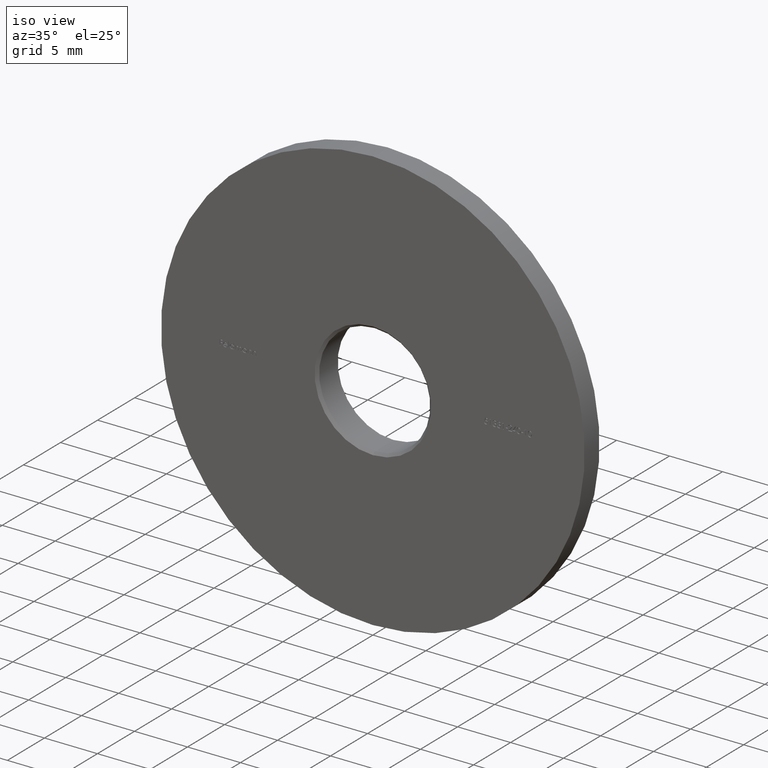
[diagram: clean part render]
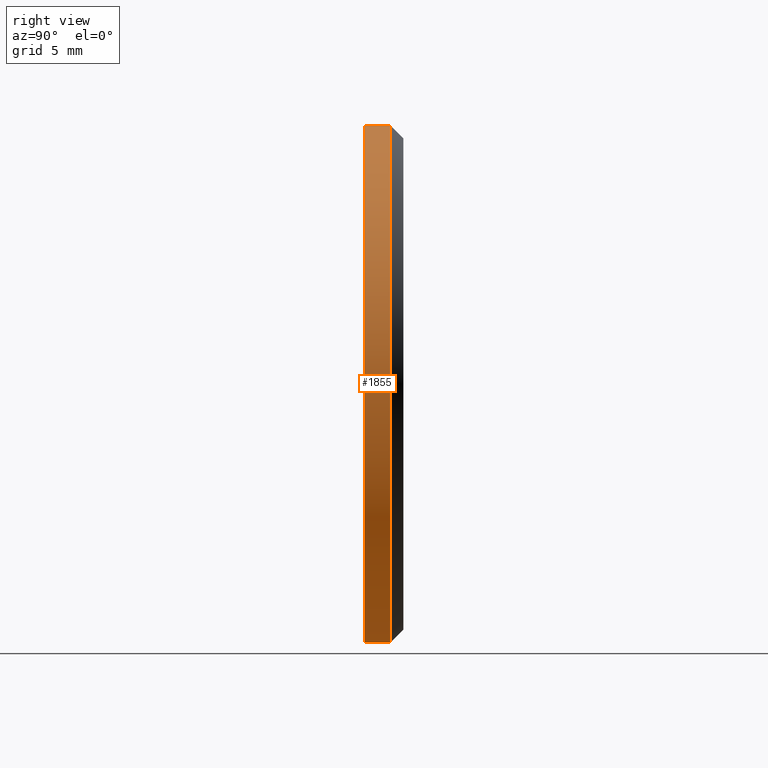
[diagram: tour spotlight — one face highlighted and labeled with its STEP entity id]
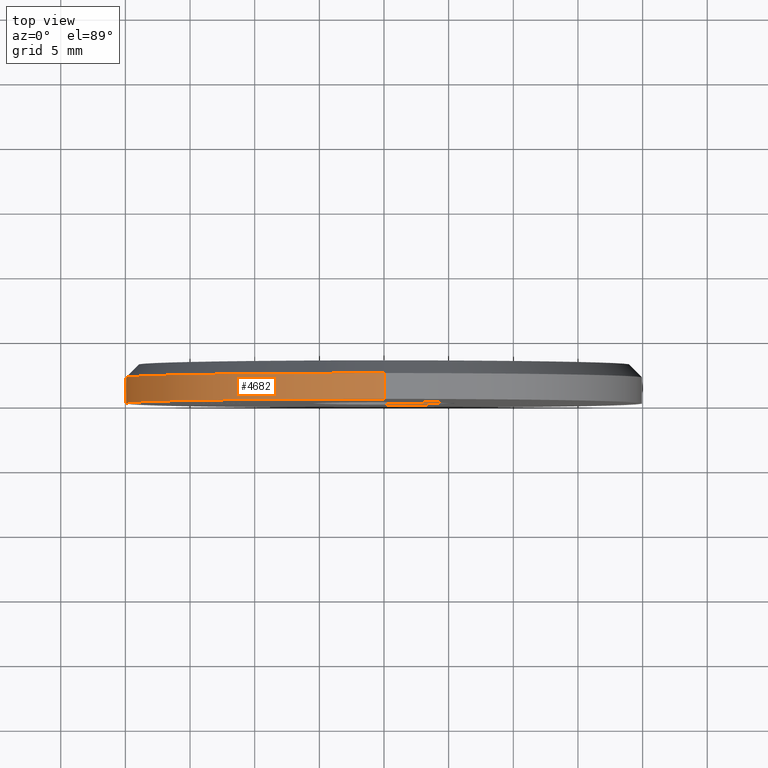
[diagram: tour spotlight — one face highlighted and labeled with its STEP entity id]
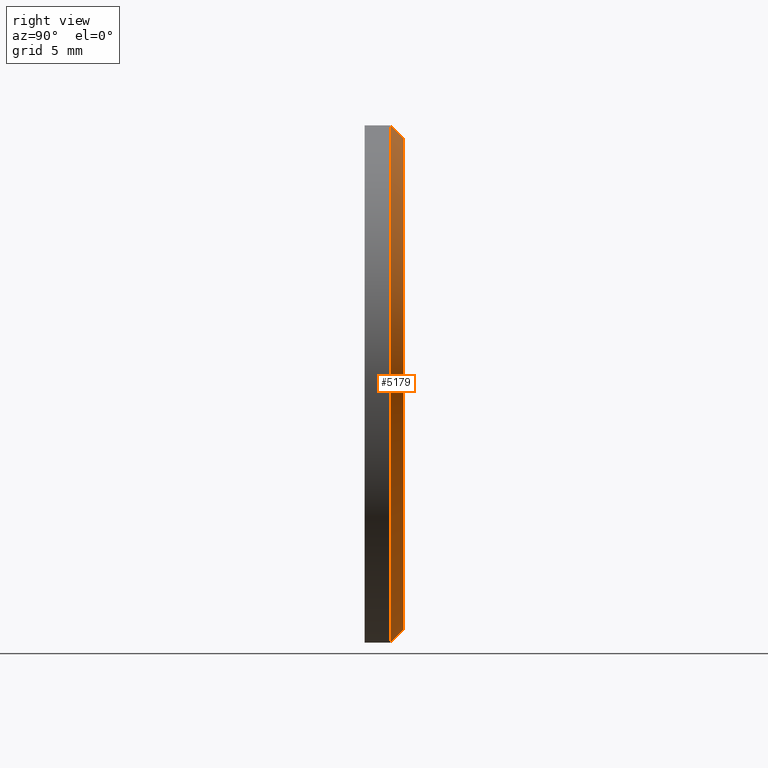
[diagram: tour spotlight — one face highlighted and labeled with its STEP entity id]
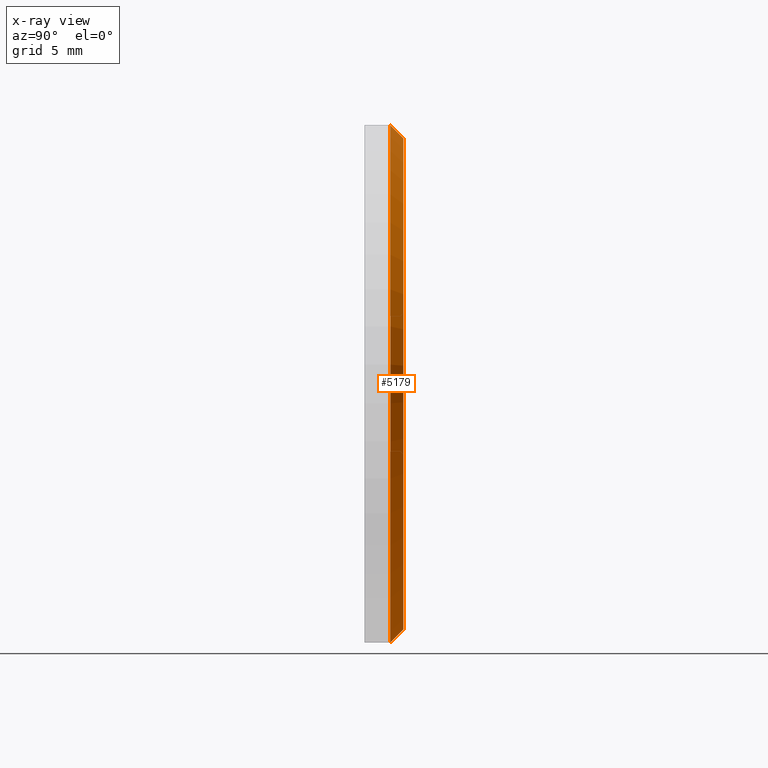
[diagram: x-ray of the same camera — body ghosted, this tour face saturated]
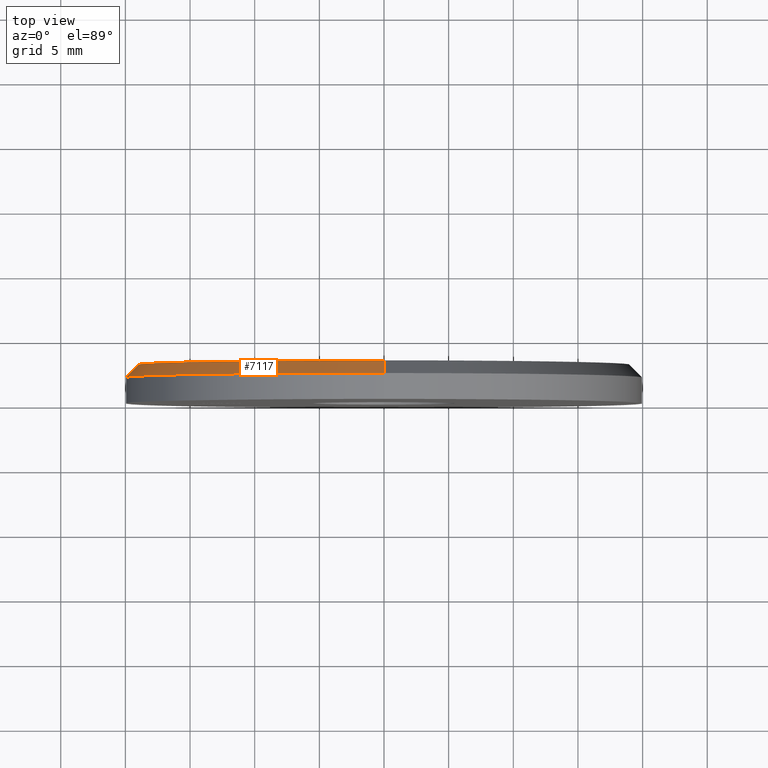
[diagram: tour spotlight — one face highlighted and labeled with its STEP entity id]
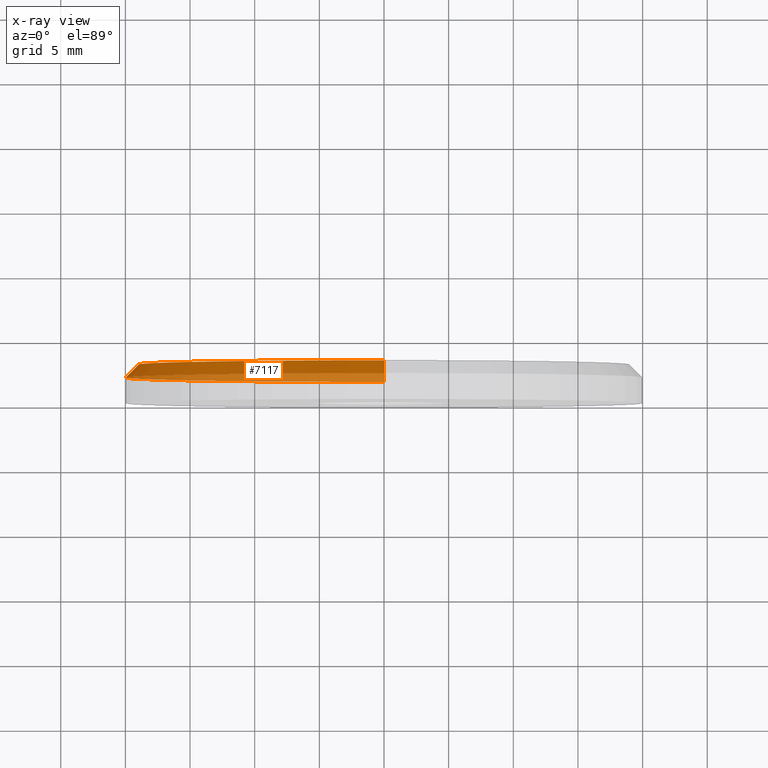
[diagram: x-ray of the same camera — body ghosted, this tour face saturated]
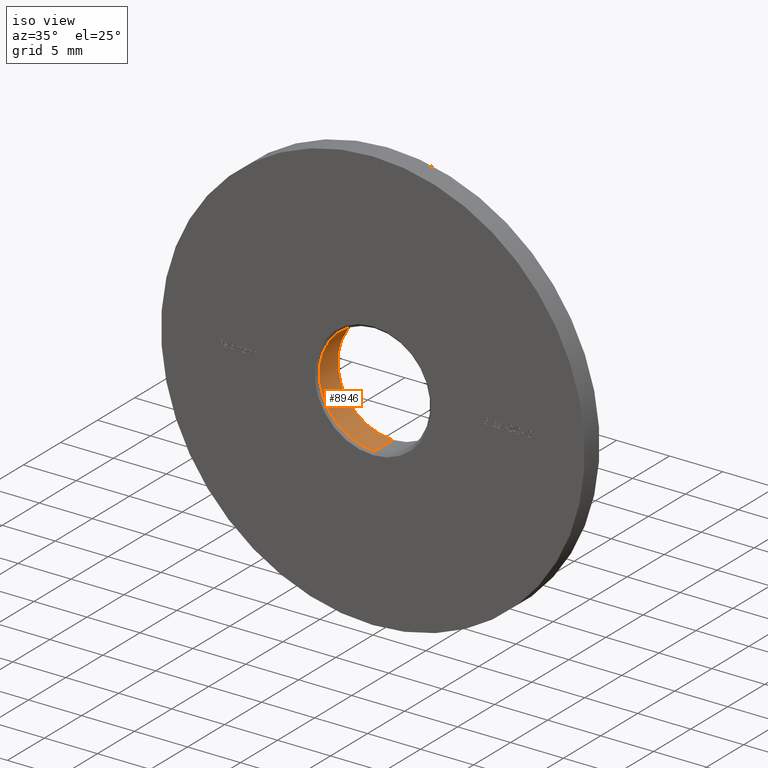
[diagram: tour spotlight — one face highlighted and labeled with its STEP entity id]
A machine part: a face-by-face anatomy tour. The part has 257 B-rep faces; the first image is the clean iso view, then the 5 largest visible faces are spotlighted one at a time (largest first), each with its STEP entity span.

Face 1 — right view, entity #1855. In plain terms, the highlighted cylindrical surface (partial cylindrical patch) has radius 20 mm, axis along (-0, -1, -0).
Definition (entity closure, byte-faithful):
#95 = ORIENTED_EDGE ( 'NONE', *, *, #11075, .T. ) ;
#1220 = DIRECTION ( 'NONE',  ( -0.000000000000000000, -1.000000000000000000, -0.000000000000000000 ) ) ;
#1492 = ORIENTED_EDGE ( 'NONE', *, *, #8247, .F. ) ;
#1716 = VECTOR ( 'NONE', #1220, 1000.000000000000000 ) ;
#1755 = CARTESIAN_POINT ( 'NONE',  ( 0.000000000000000000, 3.000000000000000000, 0.000000000000000000 ) ) ;
#1855 = ADVANCED_FACE ( 'NONE', ( #10318 ), #2284, .T. ) ;
#2264 = CARTESIAN_POINT ( 'NONE',  ( 2.449293598294706513E-15, 3.000000000000000000, 20.00000000000000000 ) ) ;
#2284 = CYLINDRICAL_SURFACE ( 'NONE', #9618, 20.00000000000000000 ) ;
#2450 = AXIS2_PLACEMENT_3D ( 'NONE', #12706, #5254, #5344 ) ;
#2993 = CIRCLE ( 'NONE', #4807, 20.00000000000000000 ) ;
#3727 = DIRECTION ( 'NONE',  ( -0.000000000000000000, -1.000000000000000000, -0.000000000000000000 ) ) ;
#4016 = ORIENTED_EDGE ( 'NONE', *, *, #5787, .T. ) ;
#4108 = VERTEX_POINT ( 'NONE', #11941 ) ;
#4807 = AXIS2_PLACEMENT_3D ( 'NONE', #7459, #11617, #5265 ) ;
#5217 = VERTEX_POINT ( 'NONE', #6935 ) ;
#5254 = DIRECTION ( 'NONE',  ( 0.000000000000000000, 1.000000000000000000, 0.000000000000000000 ) ) ;
#5265 = DIRECTION ( 'NONE',  ( 0.000000000000000000, 0.000000000000000000, 1.000000000000000000 ) ) ;
#5344 = DIRECTION ( 'NONE',  ( 0.000000000000000000, 0.000000000000000000, 1.000000000000000000 ) ) ;
#5375 = VECTOR ( 'NONE', #9614, 1000.000000000000000 ) ;
#5434 = EDGE_CURVE ( 'NONE', #5217, #4108, #6909, .T. ) ;
#5787 = EDGE_CURVE ( 'NONE', #4108, #9002, #13626, .T. ) ;
#5882 = VERTEX_POINT ( 'NONE', #9190 ) ;
#6909 = LINE ( 'NONE', #2264, #1716 ) ;
#6935 = CARTESIAN_POINT ( 'NONE',  ( 2.449293598294706513E-15, 1.999999999999988676, 20.00000000000000000 ) ) ;
#7459 = CARTESIAN_POINT ( 'NONE',  ( 0.000000000000000000, 1.999999999999988676, 0.000000000000000000 ) ) ;
#8247 = EDGE_CURVE ( 'NONE', #5882, #9002, #11050, .T. ) ;
#8515 = CARTESIAN_POINT ( 'NONE',  ( 0.000000000000000000, 0.000000000000000000, -20.00000000000000000 ) ) ;
#8535 = EDGE_LOOP ( 'NONE', ( #95, #8676, #4016, #1492 ) ) ;
#8676 = ORIENTED_EDGE ( 'NONE', *, *, #5434, .T. ) ;
#9002 = VERTEX_POINT ( 'NONE', #8515 ) ;
#9190 = CARTESIAN_POINT ( 'NONE',  ( 0.000000000000000000, 1.999999999999988676, -20.00000000000000000 ) ) ;
#9614 = DIRECTION ( 'NONE',  ( -0.000000000000000000, -1.000000000000000000, -0.000000000000000000 ) ) ;
#9618 = AXIS2_PLACEMENT_3D ( 'NONE', #1755, #3727, #13834 ) ;
#10318 = FACE_OUTER_BOUND ( 'NONE', #8535, .T. ) ;
#10730 = CARTESIAN_POINT ( 'NONE',  ( 0.000000000000000000, 3.000000000000000000, -20.00000000000000000 ) ) ;
#11050 = LINE ( 'NONE', #10730, #5375 ) ;
#11075 = EDGE_CURVE ( 'NONE', #5882, #5217, #2993, .T. ) ;
#11617 = DIRECTION ( 'NONE',  ( 0.000000000000000000, -1.000000000000000000, 0.000000000000000000 ) ) ;
#11941 = CARTESIAN_POINT ( 'NONE',  ( 2.449293598294706513E-15, 0.000000000000000000, 20.00000000000000000 ) ) ;
#12706 = CARTESIAN_POINT ( 'NONE',  ( 0.000000000000000000, 0.000000000000000000, 0.000000000000000000 ) ) ;
#13626 = CIRCLE ( 'NONE', #2450, 20.00000000000000000 ) ;
#13834 = DIRECTION ( 'NONE',  ( 0.000000000000000000, 0.000000000000000000, -1.000000000000000000 ) ) ;

Face 2 — top view, entity #4682. In plain terms, the highlighted cylindrical surface (partial cylindrical patch) has radius 20 mm, axis along (-0, -1, -0).
Definition (entity closure, byte-faithful):
#252 = CIRCLE ( 'NONE', #6694, 20.00000000000000000 ) ;
#859 = DIRECTION ( 'NONE',  ( 0.000000000000000000, 0.000000000000000000, 1.000000000000000000 ) ) ;
#913 = ORIENTED_EDGE ( 'NONE', *, *, #8247, .T. ) ;
#1220 = DIRECTION ( 'NONE',  ( -0.000000000000000000, -1.000000000000000000, -0.000000000000000000 ) ) ;
#1716 = VECTOR ( 'NONE', #1220, 1000.000000000000000 ) ;
#2238 = FACE_OUTER_BOUND ( 'NONE', #5952, .T. ) ;
#2264 = CARTESIAN_POINT ( 'NONE',  ( 2.449293598294706513E-15, 3.000000000000000000, 20.00000000000000000 ) ) ;
#2394 = DIRECTION ( 'NONE',  ( 0.000000000000000000, 0.000000000000000000, -1.000000000000000000 ) ) ;
#2734 = CYLINDRICAL_SURFACE ( 'NONE', #2985, 20.00000000000000000 ) ;
#2985 = AXIS2_PLACEMENT_3D ( 'NONE', #6733, #4585, #2394 ) ;
#4017 = ORIENTED_EDGE ( 'NONE', *, *, #11568, .T. ) ;
#4108 = VERTEX_POINT ( 'NONE', #11941 ) ;
#4585 = DIRECTION ( 'NONE',  ( -0.000000000000000000, -1.000000000000000000, -0.000000000000000000 ) ) ;
#4682 = ADVANCED_FACE ( 'NONE', ( #2238 ), #2734, .T. ) ;
#5217 = VERTEX_POINT ( 'NONE', #6935 ) ;
#5375 = VECTOR ( 'NONE', #9614, 1000.000000000000000 ) ;
#5434 = EDGE_CURVE ( 'NONE', #5217, #4108, #6909, .T. ) ;
#5882 = VERTEX_POINT ( 'NONE', #9190 ) ;
#5952 = EDGE_LOOP ( 'NONE', ( #13633, #8682, #913, #4017 ) ) ;
#6346 = DIRECTION ( 'NONE',  ( 0.000000000000000000, -1.000000000000000000, 0.000000000000000000 ) ) ;
#6547 = CIRCLE ( 'NONE', #8763, 20.00000000000000000 ) ;
#6694 = AXIS2_PLACEMENT_3D ( 'NONE', #9339, #13654, #13560 ) ;
#6733 = CARTESIAN_POINT ( 'NONE',  ( 0.000000000000000000, 3.000000000000000000, 0.000000000000000000 ) ) ;
#6909 = LINE ( 'NONE', #2264, #1716 ) ;
#6935 = CARTESIAN_POINT ( 'NONE',  ( 2.449293598294706513E-15, 1.999999999999988676, 20.00000000000000000 ) ) ;
#7857 = EDGE_CURVE ( 'NONE', #5217, #5882, #6547, .T. ) ;
#8247 = EDGE_CURVE ( 'NONE', #5882, #9002, #11050, .T. ) ;
#8515 = CARTESIAN_POINT ( 'NONE',  ( 0.000000000000000000, 0.000000000000000000, -20.00000000000000000 ) ) ;
#8521 = CARTESIAN_POINT ( 'NONE',  ( 0.000000000000000000, 1.999999999999988676, 0.000000000000000000 ) ) ;
#8682 = ORIENTED_EDGE ( 'NONE', *, *, #7857, .T. ) ;
#8763 = AXIS2_PLACEMENT_3D ( 'NONE', #8521, #6346, #859 ) ;
#9002 = VERTEX_POINT ( 'NONE', #8515 ) ;
#9190 = CARTESIAN_POINT ( 'NONE',  ( 0.000000000000000000, 1.999999999999988676, -20.00000000000000000 ) ) ;
#9339 = CARTESIAN_POINT ( 'NONE',  ( 0.000000000000000000, 0.000000000000000000, 0.000000000000000000 ) ) ;
#9614 = DIRECTION ( 'NONE',  ( -0.000000000000000000, -1.000000000000000000, -0.000000000000000000 ) ) ;
#10730 = CARTESIAN_POINT ( 'NONE',  ( 0.000000000000000000, 3.000000000000000000, -20.00000000000000000 ) ) ;
#11050 = LINE ( 'NONE', #10730, #5375 ) ;
#11568 = EDGE_CURVE ( 'NONE', #9002, #4108, #252, .T. ) ;
#11941 = CARTESIAN_POINT ( 'NONE',  ( 2.449293598294706513E-15, 0.000000000000000000, 20.00000000000000000 ) ) ;
#13560 = DIRECTION ( 'NONE',  ( 0.000000000000000000, 0.000000000000000000, 1.000000000000000000 ) ) ;
#13633 = ORIENTED_EDGE ( 'NONE', *, *, #5434, .F. ) ;
#13654 = DIRECTION ( 'NONE',  ( 0.000000000000000000, 1.000000000000000000, 0.000000000000000000 ) ) ;

Face 3 — right view, entity #5179. An x-ray twin of the same camera follows (body ghosted, this face saturated) — the face is partly hidden behind the body. In plain terms, the highlighted conical surface has half-angle 45 deg.
Definition (entity closure, byte-faithful):
#919 = EDGE_LOOP ( 'NONE', ( #2579, #3043, #6668, #8439 ) ) ;
#1325 = CARTESIAN_POINT ( 'NONE',  ( 0.000000000000000000, 3.000000000000000000, 0.000000000000000000 ) ) ;
#1699 = CARTESIAN_POINT ( 'NONE',  ( 0.000000000000000000, 3.000000000000000000, -18.99999999999998934 ) ) ;
#1810 = AXIS2_PLACEMENT_3D ( 'NONE', #1325, #9146, #4703 ) ;
#1971 = DIRECTION ( 'NONE',  ( 0.000000000000000000, -0.7071067811865474617, -0.7071067811865474617 ) ) ;
#2434 = CARTESIAN_POINT ( 'NONE',  ( 2.388061258337338150E-15, 3.000000000000000000, 18.99999999999998934 ) ) ;
#2579 = ORIENTED_EDGE ( 'NONE', *, *, #9451, .F. ) ;
#2856 = LINE ( 'NONE', #6296, #9576 ) ;
#2939 = VERTEX_POINT ( 'NONE', #1699 ) ;
#2993 = CIRCLE ( 'NONE', #4807, 20.00000000000000000 ) ;
#3043 = ORIENTED_EDGE ( 'NONE', *, *, #13453, .T. ) ;
#3467 = DIRECTION ( 'NONE',  ( 0.000000000000000000, 1.000000000000000000, 0.000000000000000000 ) ) ;
#3662 = CIRCLE ( 'NONE', #12628, 18.99999999999998934 ) ;
#4102 = DIRECTION ( 'NONE',  ( 8.659560562354932858E-17, -0.7071067811865474617, 0.7071067811865474617 ) ) ;
#4703 = DIRECTION ( 'NONE',  ( 0.000000000000000000, 0.000000000000000000, -1.000000000000000000 ) ) ;
#4729 = VERTEX_POINT ( 'NONE', #2434 ) ;
#4807 = AXIS2_PLACEMENT_3D ( 'NONE', #7459, #11617, #5265 ) ;
#5179 = ADVANCED_FACE ( 'NONE', ( #8116 ), #8921, .T. ) ;
#5217 = VERTEX_POINT ( 'NONE', #6935 ) ;
#5265 = DIRECTION ( 'NONE',  ( 0.000000000000000000, 0.000000000000000000, 1.000000000000000000 ) ) ;
#5882 = VERTEX_POINT ( 'NONE', #9190 ) ;
#6233 = EDGE_CURVE ( 'NONE', #2939, #5882, #13123, .T. ) ;
#6296 = CARTESIAN_POINT ( 'NONE',  ( 2.326828918379969787E-15, 3.000000000000000000, 18.99999999999998934 ) ) ;
#6668 = ORIENTED_EDGE ( 'NONE', *, *, #11075, .F. ) ;
#6935 = CARTESIAN_POINT ( 'NONE',  ( 2.449293598294706513E-15, 1.999999999999988676, 20.00000000000000000 ) ) ;
#7459 = CARTESIAN_POINT ( 'NONE',  ( 0.000000000000000000, 1.999999999999988676, 0.000000000000000000 ) ) ;
#8116 = FACE_OUTER_BOUND ( 'NONE', #919, .T. ) ;
#8439 = ORIENTED_EDGE ( 'NONE', *, *, #6233, .F. ) ;
#8921 = CONICAL_SURFACE ( 'NONE', #1810, 18.99999999999998934, 0.7853981633974482790 ) ;
#9146 = DIRECTION ( 'NONE',  ( 0.000000000000000000, -1.000000000000000000, 0.000000000000000000 ) ) ;
#9190 = CARTESIAN_POINT ( 'NONE',  ( 0.000000000000000000, 1.999999999999988676, -20.00000000000000000 ) ) ;
#9451 = EDGE_CURVE ( 'NONE', #4729, #2939, #3662, .T. ) ;
#9576 = VECTOR ( 'NONE', #4102, 1000.000000000000114 ) ;
#9889 = CARTESIAN_POINT ( 'NONE',  ( 0.000000000000000000, 3.000000000000000000, 0.000000000000000000 ) ) ;
#10260 = VECTOR ( 'NONE', #1971, 1000.000000000000114 ) ;
#10955 = DIRECTION ( 'NONE',  ( 0.000000000000000000, 0.000000000000000000, 1.000000000000000000 ) ) ;
#11075 = EDGE_CURVE ( 'NONE', #5882, #5217, #2993, .T. ) ;
#11617 = DIRECTION ( 'NONE',  ( 0.000000000000000000, -1.000000000000000000, 0.000000000000000000 ) ) ;
#12620 = CARTESIAN_POINT ( 'NONE',  ( 0.000000000000000000, 3.000000000000000000, -18.99999999999998934 ) ) ;
#12628 = AXIS2_PLACEMENT_3D ( 'NONE', #9889, #3467, #10955 ) ;
#13123 = LINE ( 'NONE', #12620, #10260 ) ;
#13453 = EDGE_CURVE ( 'NONE', #4729, #5217, #2856, .T. ) ;

Face 4 — top view, entity #7117. An x-ray twin of the same camera follows (body ghosted, this face saturated) — the face is partly hidden behind the body. In plain terms, the highlighted conical surface has half-angle 45 deg.
Definition (entity closure, byte-faithful):
#284 = AXIS2_PLACEMENT_3D ( 'NONE', #9160, #13714, #5053 ) ;
#634 = ORIENTED_EDGE ( 'NONE', *, *, #7857, .F. ) ;
#859 = DIRECTION ( 'NONE',  ( 0.000000000000000000, 0.000000000000000000, 1.000000000000000000 ) ) ;
#1699 = CARTESIAN_POINT ( 'NONE',  ( 0.000000000000000000, 3.000000000000000000, -18.99999999999998934 ) ) ;
#1971 = DIRECTION ( 'NONE',  ( 0.000000000000000000, -0.7071067811865474617, -0.7071067811865474617 ) ) ;
#2434 = CARTESIAN_POINT ( 'NONE',  ( 2.388061258337338150E-15, 3.000000000000000000, 18.99999999999998934 ) ) ;
#2856 = LINE ( 'NONE', #6296, #9576 ) ;
#2939 = VERTEX_POINT ( 'NONE', #1699 ) ;
#3078 = EDGE_CURVE ( 'NONE', #2939, #4729, #6441, .T. ) ;
#4102 = DIRECTION ( 'NONE',  ( 8.659560562354932858E-17, -0.7071067811865474617, 0.7071067811865474617 ) ) ;
#4729 = VERTEX_POINT ( 'NONE', #2434 ) ;
#5053 = DIRECTION ( 'NONE',  ( 0.000000000000000000, 0.000000000000000000, -1.000000000000000000 ) ) ;
#5217 = VERTEX_POINT ( 'NONE', #6935 ) ;
#5882 = VERTEX_POINT ( 'NONE', #9190 ) ;
#6060 = CONICAL_SURFACE ( 'NONE', #284, 18.99999999999998934, 0.7853981633974482790 ) ;
#6233 = EDGE_CURVE ( 'NONE', #2939, #5882, #13123, .T. ) ;
#6296 = CARTESIAN_POINT ( 'NONE',  ( 2.326828918379969787E-15, 3.000000000000000000, 18.99999999999998934 ) ) ;
#6346 = DIRECTION ( 'NONE',  ( 0.000000000000000000, -1.000000000000000000, 0.000000000000000000 ) ) ;
#6402 = FACE_OUTER_BOUND ( 'NONE', #8823, .T. ) ;
#6441 = CIRCLE ( 'NONE', #8980, 18.99999999999998934 ) ;
#6547 = CIRCLE ( 'NONE', #8763, 20.00000000000000000 ) ;
#6935 = CARTESIAN_POINT ( 'NONE',  ( 2.449293598294706513E-15, 1.999999999999988676, 20.00000000000000000 ) ) ;
#7117 = ADVANCED_FACE ( 'NONE', ( #6402 ), #6060, .T. ) ;
#7857 = EDGE_CURVE ( 'NONE', #5217, #5882, #6547, .T. ) ;
#8521 = CARTESIAN_POINT ( 'NONE',  ( 0.000000000000000000, 1.999999999999988676, 0.000000000000000000 ) ) ;
#8688 = ORIENTED_EDGE ( 'NONE', *, *, #13453, .F. ) ;
#8763 = AXIS2_PLACEMENT_3D ( 'NONE', #8521, #6346, #859 ) ;
#8823 = EDGE_LOOP ( 'NONE', ( #8688, #13466, #9337, #634 ) ) ;
#8980 = AXIS2_PLACEMENT_3D ( 'NONE', #9528, #10567, #11666 ) ;
#9160 = CARTESIAN_POINT ( 'NONE',  ( 0.000000000000000000, 3.000000000000000000, 0.000000000000000000 ) ) ;
#9190 = CARTESIAN_POINT ( 'NONE',  ( 0.000000000000000000, 1.999999999999988676, -20.00000000000000000 ) ) ;
#9337 = ORIENTED_EDGE ( 'NONE', *, *, #6233, .T. ) ;
#9528 = CARTESIAN_POINT ( 'NONE',  ( 0.000000000000000000, 3.000000000000000000, 0.000000000000000000 ) ) ;
#9576 = VECTOR ( 'NONE', #4102, 1000.000000000000114 ) ;
#10260 = VECTOR ( 'NONE', #1971, 1000.000000000000114 ) ;
#10567 = DIRECTION ( 'NONE',  ( 0.000000000000000000, 1.000000000000000000, 0.000000000000000000 ) ) ;
#11666 = DIRECTION ( 'NONE',  ( 0.000000000000000000, 0.000000000000000000, 1.000000000000000000 ) ) ;
#12620 = CARTESIAN_POINT ( 'NONE',  ( 0.000000000000000000, 3.000000000000000000, -18.99999999999998934 ) ) ;
#13123 = LINE ( 'NONE', #12620, #10260 ) ;
#13453 = EDGE_CURVE ( 'NONE', #4729, #5217, #2856, .T. ) ;
#13466 = ORIENTED_EDGE ( 'NONE', *, *, #3078, .F. ) ;
#13714 = DIRECTION ( 'NONE',  ( 0.000000000000000000, -1.000000000000000000, 0.000000000000000000 ) ) ;

Face 5 — iso view, entity #8946. In plain terms, the highlighted cylindrical surface (partial cylindrical patch) has radius 5.25 mm, axis along (-0, -1, -0).
Definition (entity closure, byte-faithful):
#19 = CARTESIAN_POINT ( 'NONE',  ( 0.000000000000000000, 0.2499999999999924227, 0.000000000000000000 ) ) ;
#256 = ORIENTED_EDGE ( 'NONE', *, *, #10761, .T. ) ;
#614 = VECTOR ( 'NONE', #12829, 1000.000000000000000 ) ;
#1631 = AXIS2_PLACEMENT_3D ( 'NONE', #6008, #13504, #9237 ) ;
#1942 = AXIS2_PLACEMENT_3D ( 'NONE', #19, #2324, #5462 ) ;
#2019 = ORIENTED_EDGE ( 'NONE', *, *, #13846, .T. ) ;
#2096 = VERTEX_POINT ( 'NONE', #8022 ) ;
#2305 = DIRECTION ( 'NONE',  ( -0.000000000000000000, -1.000000000000000000, -0.000000000000000000 ) ) ;
#2324 = DIRECTION ( 'NONE',  ( -0.000000000000000000, -1.000000000000000000, -0.000000000000000000 ) ) ;
#2356 = LINE ( 'NONE', #6648, #7882 ) ;
#2613 = VERTEX_POINT ( 'NONE', #7003 ) ;
#2669 = EDGE_LOOP ( 'NONE', ( #6682, #2019, #256, #2673 ) ) ;
#2673 = ORIENTED_EDGE ( 'NONE', *, *, #10625, .F. ) ;
#3794 = VERTEX_POINT ( 'NONE', #5928 ) ;
#4188 = FACE_OUTER_BOUND ( 'NONE', #2669, .T. ) ;
#4196 = CARTESIAN_POINT ( 'NONE',  ( 0.000000000000000000, 3.000000000000000000, 0.000000000000000000 ) ) ;
#4518 = CYLINDRICAL_SURFACE ( 'NONE', #9473, 5.250000000000000000 ) ;
#5462 = DIRECTION ( 'NONE',  ( 0.000000000000000000, 0.000000000000000000, 1.000000000000000000 ) ) ;
#5928 = CARTESIAN_POINT ( 'NONE',  ( 6.429395695523604153E-16, 0.2499999999999924227, 5.250000000000000000 ) ) ;
#6008 = CARTESIAN_POINT ( 'NONE',  ( 0.000000000000000000, 2.749999999999990230, 0.000000000000000000 ) ) ;
#6302 = CARTESIAN_POINT ( 'NONE',  ( 0.000000000000000000, 3.000000000000000000, -5.250000000000000000 ) ) ;
#6392 = DIRECTION ( 'NONE',  ( -0.000000000000000000, -1.000000000000000000, -0.000000000000000000 ) ) ;
#6648 = CARTESIAN_POINT ( 'NONE',  ( 6.429395695523604153E-16, 3.000000000000000000, 5.250000000000000000 ) ) ;
#6682 = ORIENTED_EDGE ( 'NONE', *, *, #9238, .T. ) ;
#7003 = CARTESIAN_POINT ( 'NONE',  ( 0.000000000000000000, 0.2499999999999924227, -5.250000000000000000 ) ) ;
#7882 = VECTOR ( 'NONE', #2305, 1000.000000000000000 ) ;
#8022 = CARTESIAN_POINT ( 'NONE',  ( 0.000000000000000000, 2.749999999999990230, -5.250000000000000000 ) ) ;
#8946 = ADVANCED_FACE ( 'NONE', ( #4188 ), #4518, .F. ) ;
#9237 = DIRECTION ( 'NONE',  ( 0.000000000000000000, 0.000000000000000000, 1.000000000000000000 ) ) ;
#9238 = EDGE_CURVE ( 'NONE', #2096, #10543, #12044, .T. ) ;
#9473 = AXIS2_PLACEMENT_3D ( 'NONE', #4196, #6392, #13891 ) ;
#10543 = VERTEX_POINT ( 'NONE', #13342 ) ;
#10625 = EDGE_CURVE ( 'NONE', #2096, #2613, #13379, .T. ) ;
#10761 = EDGE_CURVE ( 'NONE', #3794, #2613, #11686, .T. ) ;
#11686 = CIRCLE ( 'NONE', #1942, 5.250000000000000000 ) ;
#12044 = CIRCLE ( 'NONE', #1631, 5.250000000000000000 ) ;
#12829 = DIRECTION ( 'NONE',  ( -0.000000000000000000, -1.000000000000000000, -0.000000000000000000 ) ) ;
#13342 = CARTESIAN_POINT ( 'NONE',  ( 6.429395695523604153E-16, 2.749999999999990230, 5.250000000000000000 ) ) ;
#13379 = LINE ( 'NONE', #6302, #614 ) ;
#13504 = DIRECTION ( 'NONE',  ( 0.000000000000000000, 1.000000000000000000, 0.000000000000000000 ) ) ;
#13846 = EDGE_CURVE ( 'NONE', #10543, #3794, #2356, .T. ) ;
#13891 = DIRECTION ( 'NONE',  ( 0.000000000000000000, 0.000000000000000000, -1.000000000000000000 ) ) ;